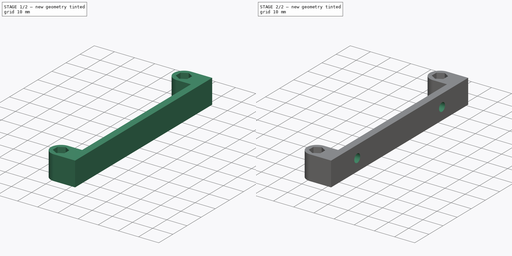
[diagram: build sequence overview — one tinted view per stage of 2, left to right]
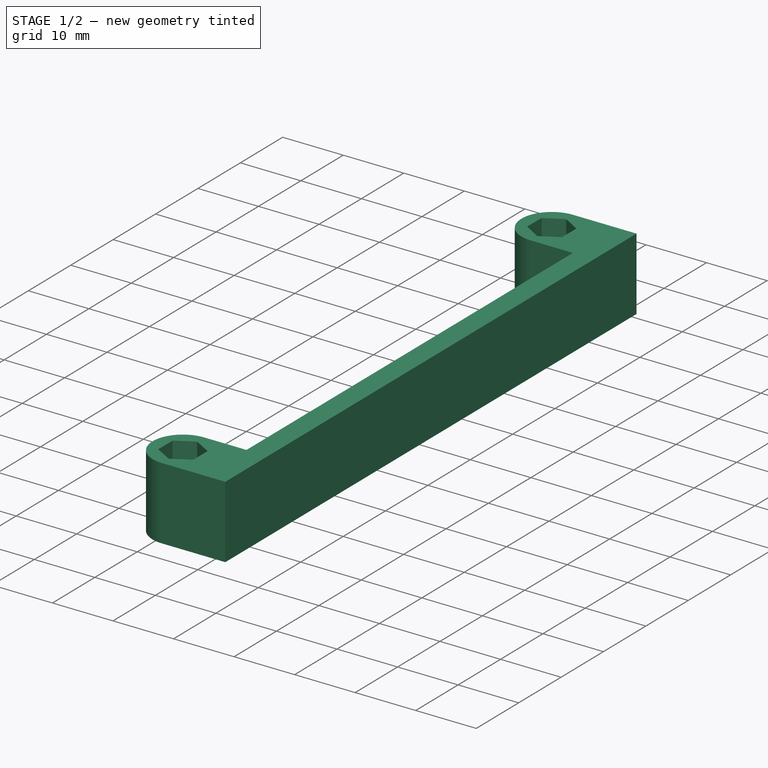
[diagram: stage 1 of 2 — iso view after this stage's code; geometry added in this stage tinted green]
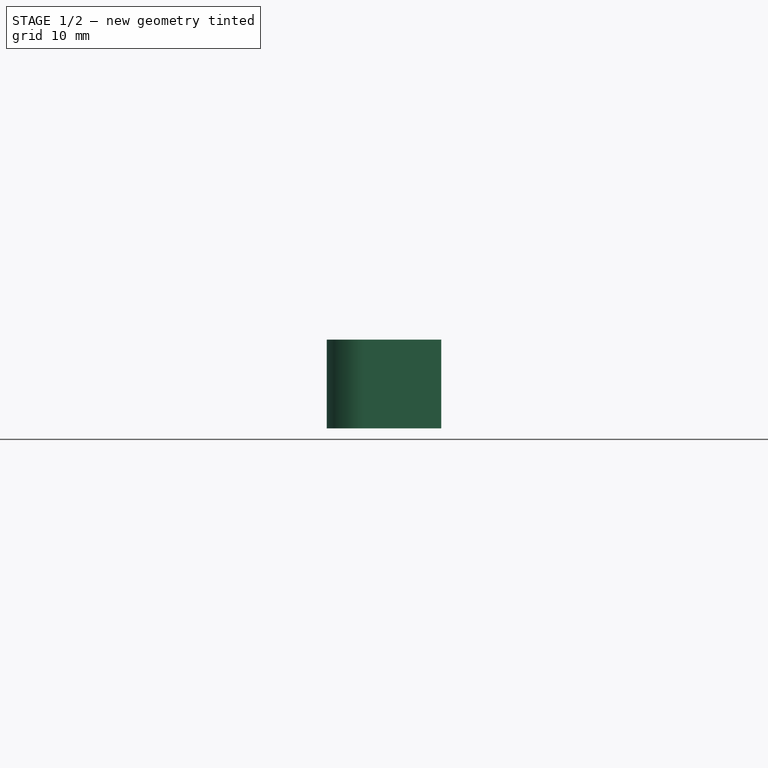
[diagram: stage 1 of 2 — front view after this stage's code; geometry added in this stage tinted green]
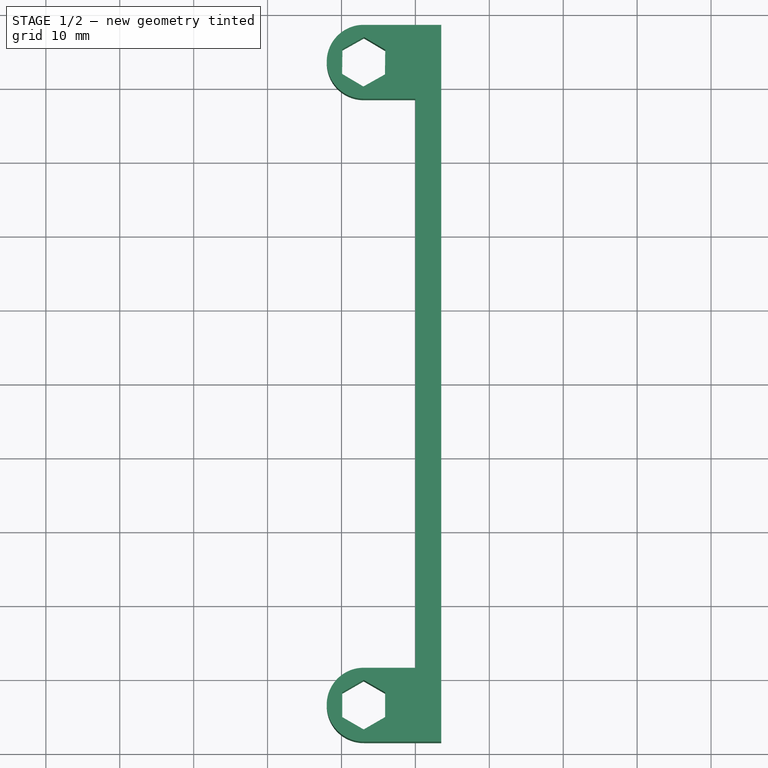
[diagram: stage 1 of 2 — top view after this stage's code; geometry added in this stage tinted green]
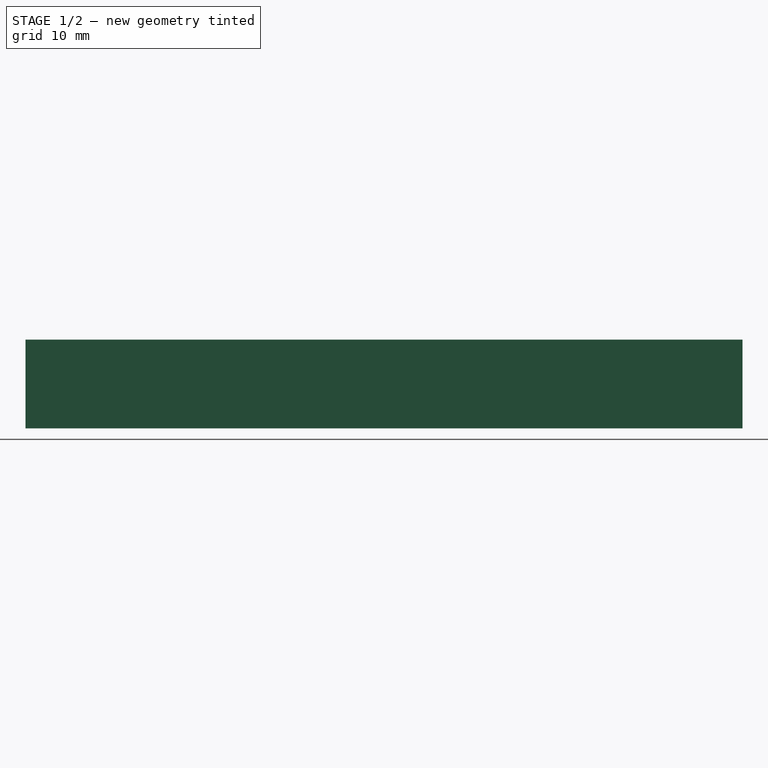
[diagram: stage 1 of 2 — right view after this stage's code; geometry added in this stage tinted green]
FCSTD DOCUMENT  (FreeCAD 0.21R33694 (Git))
Label: PCB support
License: All rights reserved
LicenseURL: http://en.wikipedia.org/wiki/All_rights_reserved
objects: Sketcher::SketchObject×3, PartDesign::Pad×1, PartDesign::Pocket×1, PartDesign::Body×1
note: 8 computed .brp shape members not serialized (recipe doc carries the construction recipe); baked Part::Feature solids carry a one-line shape summary decoded from their .brp

FEATURE [Sketcher::SketchObject] Sketch
  FullyConstrained = false
  MapMode = 5
  Support = -> [XY_Plane]
  sketch-geometry (24):
    g0: LineSegment StartX=0 StartY=48.5 StartZ=0 EndX=3.5 EndY=48.5 EndZ=0
    g1: LineSegment StartX=3.5 StartY=-48.5 StartZ=0 EndX=0 EndY=-48.5 EndZ=0
    g2: LineSegment StartX=0 StartY=-48.5 StartZ=0 EndX=-7 EndY=-48.5 EndZ=0
    g3: LineSegment StartX=0 StartY=48.5 StartZ=0 EndX=-7 EndY=48.5 EndZ=0
    g4: LineSegment StartX=-7 StartY=38.5 StartZ=0 EndX=0 EndY=38.5 EndZ=0
    g5: LineSegment StartX=-7 StartY=-38.5 StartZ=0 EndX=0 EndY=-38.5 EndZ=0
    g6: ArcOfCircle CenterX=-7 CenterY=-43.5 CenterZ=0 NormalX=0 NormalY=0 NormalZ=1 AngleXU=0 Radius=5 StartAngle=1.5708 EndAngle=4.71239
    g7: ArcOfCircle CenterX=-7 CenterY=43.5 CenterZ=0 NormalX=0 NormalY=0 NormalZ=1 AngleXU=0 Radius=5 StartAngle=1.5708 EndAngle=4.71239
    g8: LineSegment StartX=0 StartY=38.5 StartZ=0 EndX=0 EndY=-38.5 EndZ=0
    g9: LineSegment StartX=3.5 StartY=48.5 StartZ=0 EndX=3.5 EndY=-48.5 EndZ=0
    g10: LineSegment StartX=-4.12035 StartY=41.7909 StartZ=0 EndX=-4.08007 EndY=45.1393 EndZ=0
    g11: LineSegment StartX=-4.08007 StartY=45.1393 StartZ=0 EndX=-6.95971 EndY=46.8484 EndZ=0
    g12: LineSegment StartX=-6.95971 StartY=46.8484 StartZ=0 EndX=-9.87965 EndY=45.2091 EndZ=0
    g13: LineSegment StartX=-9.87965 StartY=45.2091 StartZ=0 EndX=-9.91993 EndY=41.8607 EndZ=0
    g14: LineSegment StartX=-9.91993 StartY=41.8607 StartZ=0 EndX=-7.04029 EndY=40.1516 EndZ=0
    g15: LineSegment StartX=-7.04029 StartY=40.1516 StartZ=0 EndX=-4.12035 EndY=41.7909 EndZ=0
    g16: Circle CenterX=-7 CenterY=43.5 CenterZ=0 NormalX=0 NormalY=0 NormalZ=1 AngleXU=0 Radius=3.34863
    g17: LineSegment StartX=-4.1 StartY=-45.1743 StartZ=0 EndX=-4.1 EndY=-41.8257 EndZ=0
    g18: LineSegment StartX=-4.1 StartY=-41.8257 StartZ=0 EndX=-7 EndY=-40.1514 EndZ=0
    g19: LineSegment StartX=-7 StartY=-40.1514 StartZ=0 EndX=-9.9 EndY=-41.8257 EndZ=0
    g20: LineSegment StartX=-9.9 StartY=-41.8257 StartZ=0 EndX=-9.9 EndY=-45.1743 EndZ=0
    g21: LineSegment StartX=-9.9 StartY=-45.1743 StartZ=0 EndX=-7 EndY=-46.8486 EndZ=0
    g22: LineSegment StartX=-7 StartY=-46.8486 StartZ=0 EndX=-4.1 EndY=-45.1743 EndZ=0
    g23: Circle CenterX=-7 CenterY=-43.5 CenterZ=0 NormalX=0 NormalY=0 NormalZ=1 AngleXU=0 Radius=3.34863
  constraints (58):
    c: PointOnObject(g0,g-2)
    c: Horizontal(g0)
    c: PointOnObject(g1,g-2)
    c: Horizontal(g1)
    c: Coincident(g1,g2)
    c: Horizontal(g2)
    c: Coincident(g0,g3)
    c: Horizontal(g3)
    c: PointOnObject(g4,g-2)
    c: Horizontal(g4)
    c: Horizontal(g5)
    c: Tangent(g6,g5) = 1.5708
    c: Tangent(g6,g2) = 1.5708
    c: Tangent(g7,g3) = -1.5708
    c: Tangent(g7,g4) = -1.5708
    c: Vertical(g6,g7)
    c: Coincident(g8,g4)
    c: Coincident(g8,g5)
    c: Equal(g7,g6)
    c: Symmetric(g4,g5,g-1)
    c: Diameter(g7) = 10
    c: Coincident(g9,g0)
    c: Coincident(g9,g1)
    c: Vertical(g9)
    c: DistanceY(g6,g7) = 87
    c: DistanceX(g7,g0) = 10.5
    c: DistanceX(g5,g1) = 3.5
    c: Coincident(g10,g11)
    c: Coincident(g11,g12)
    c: Coincident(g12,g13)
    c: Coincident(g13,g14)
    c: Coincident(g14,g15)
    c: Coincident(g15,g10)
    c: Equal(g10, g11-g15) x5
    c: PointOnObject(g10,g16)
    c: PointOnObject(g11,g16)
    c: PointOnObject(g12,g16)
    c: PointOnObject(g13,g16)
    c: PointOnObject(g14,g16)
    c: PointOnObject(g15,g16)
    c: Coincident(g16,g7)
    c: Coincident(g17,g18)
    c: Coincident(g18,g19)
    c: Coincident(g19,g20)
    c: Coincident(g20,g21)
    c: Coincident(g21,g22)
    c: Coincident(g22,g17)
    c: Equal(g17, g18-g22) x5
    c: PointOnObject(g17,g23)
    c: PointOnObject(g18,g23)
    c: PointOnObject(g19,g23)
    c: PointOnObject(g20,g23)
    c: PointOnObject(g21,g23)
    c: PointOnObject(g22,g23)
    c: Coincident(g23,g6)
    c: DistanceX(g19,g17) = 5.8
    c: Vertical(g17)
    c: Equal(g16,g23)
FEATURE [PartDesign::Pad] Pad
  Direction = (0,0,1)
  Length = 12
  Length2 = 10
  Profile = -> Sketch
  ReferenceAxis = -> Sketch [N_Axis]
  Type = 0
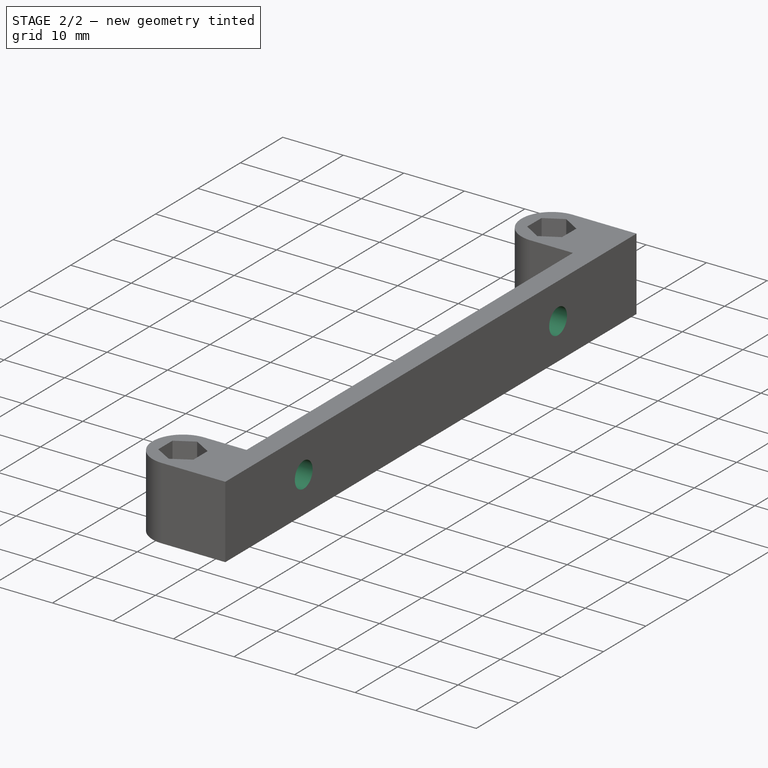
[diagram: stage 2 of 2 — iso view after this stage's code; geometry added in this stage tinted green]
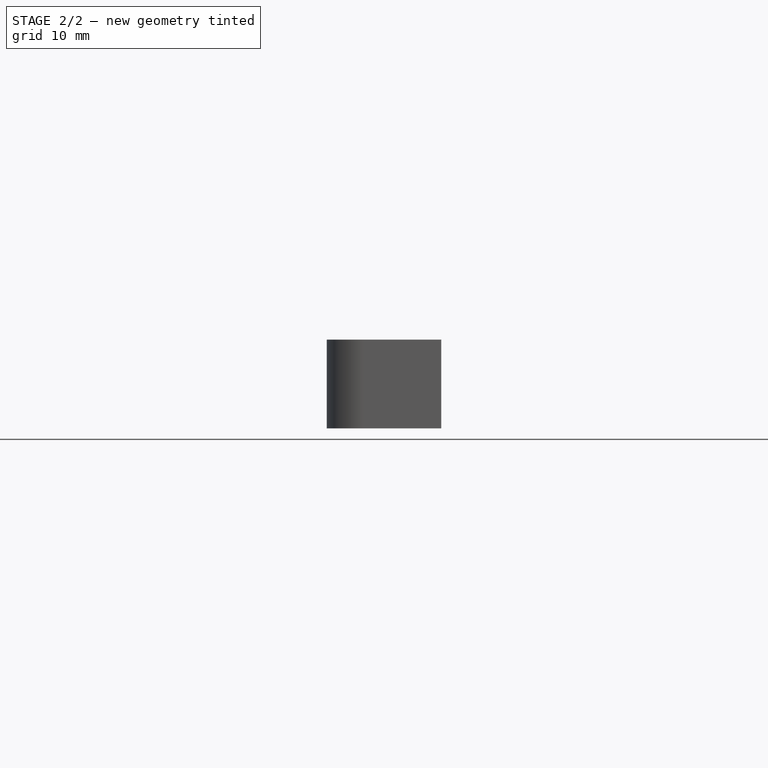
[diagram: stage 2 of 2 — front view after this stage's code; geometry added in this stage tinted green]
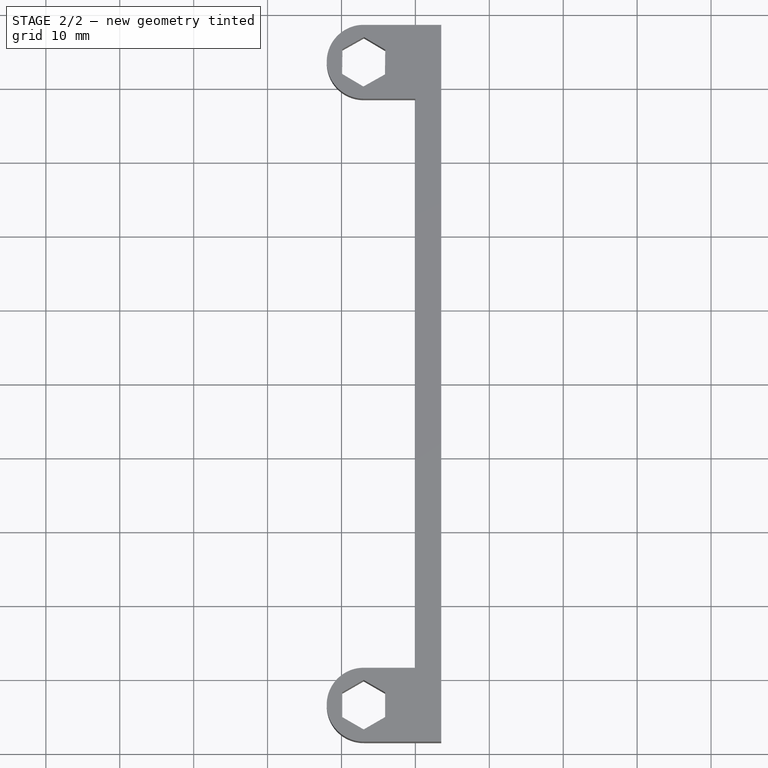
[diagram: stage 2 of 2 — top view after this stage's code; geometry added in this stage tinted green]
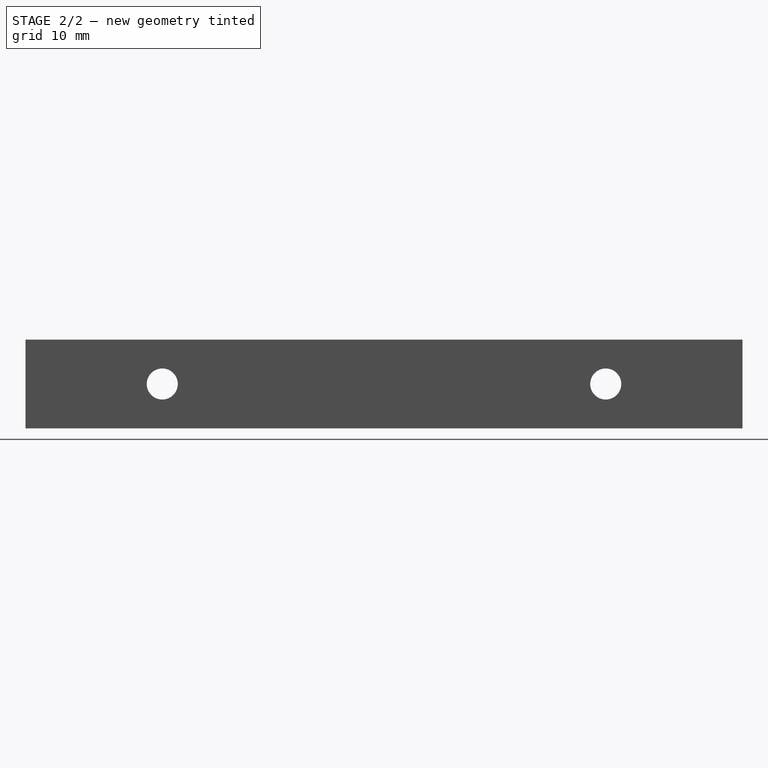
[diagram: stage 2 of 2 — right view after this stage's code; geometry added in this stage tinted green]
FEATURE [Sketcher::SketchObject] Sketch001
  FullyConstrained = true
  MapMode = 5
  Placement = pos=(3.5,0,0) rot=(0.57735,0.57735,0.57735;2.0944rad)
  Support = -> [Pad]
  sketch-geometry (2):
    g0: Circle CenterX=-30 CenterY=6 CenterZ=0 NormalX=0 NormalY=0 NormalZ=1 AngleXU=0 Radius=2.1
    g1: Circle CenterX=30 CenterY=6 CenterZ=0 NormalX=0 NormalY=0 NormalZ=1 AngleXU=0 Radius=2.1
  constraints (5):
    c: Symmetric(g1,g0,g-2)
    c: Equal(g0,g1)
    c: Diameter(g0) = 4.2
    c: DistanceY(g-1,g0) = 6
    c: DistanceX(g0,g1) = 60
FEATURE [Sketcher::SketchObject] Sketch002
  FullyConstrained = true
  MapMode = 5
  Placement = pos=(3.5,0,0) rot=(0.57735,0.57735,0.57735;2.0944rad)
  Support = -> [Pad]
FEATURE [PartDesign::Pocket] Pocket
  BaseFeature = -> Pad
  Direction = (-1,0,0)
  Length = 5
  Length2 = 5
  Profile = -> Sketch001
  ReferenceAxis = -> Sketch001 [N_Axis]
  Type = 0
FEATURE [PartDesign::Body] Body
  Group = -> [Sketch,Pad,Sketch001,Sketch002,Pocket]
  Origin = -> Origin
  Tip = -> Pocket
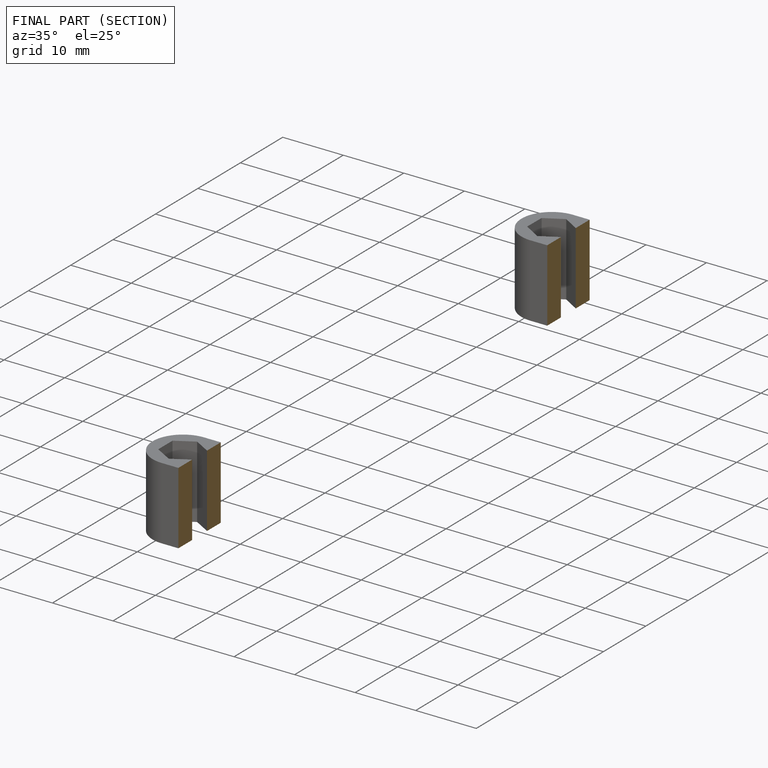
[diagram: finished part — half-section view (interior)]
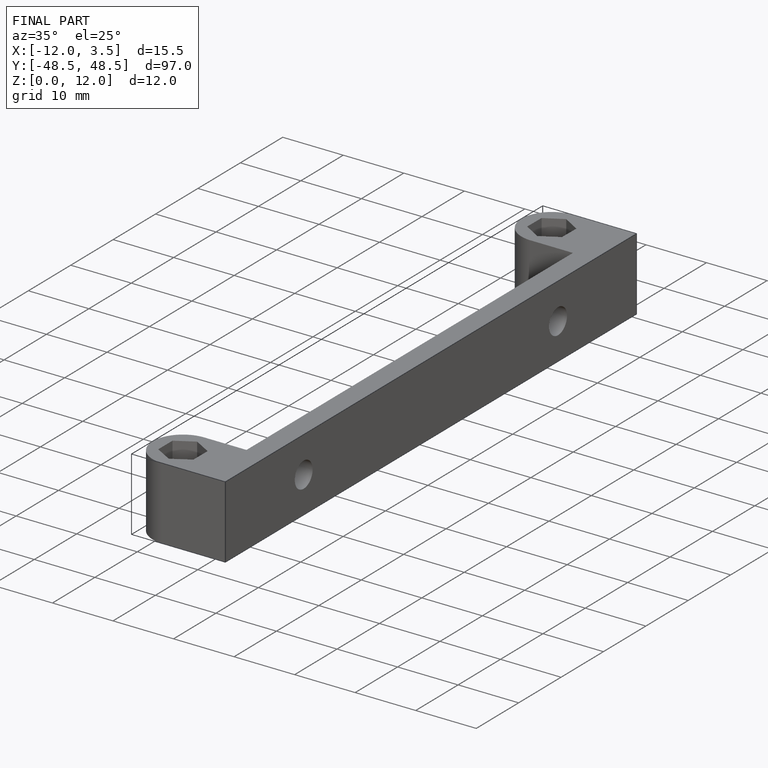
[diagram: finished part — iso view with bounding-box wireframe]
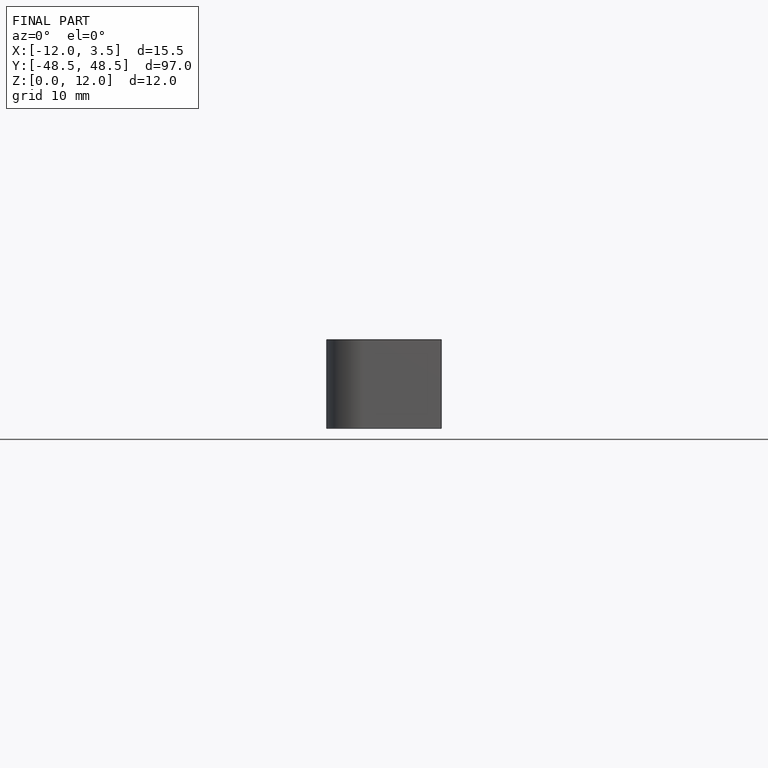
[diagram: finished part — front view with bounding-box wireframe]
